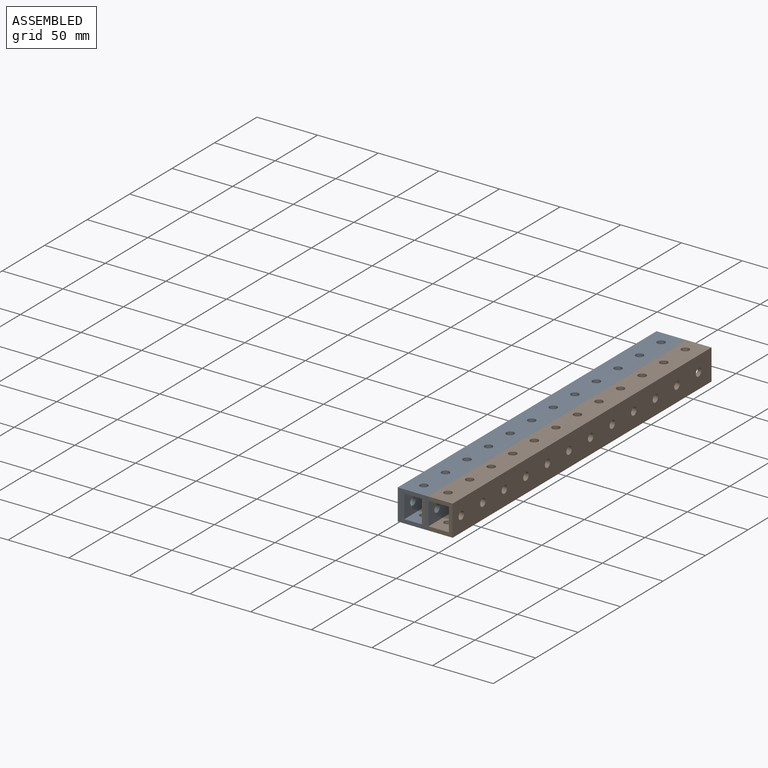
[diagram: assembled view]
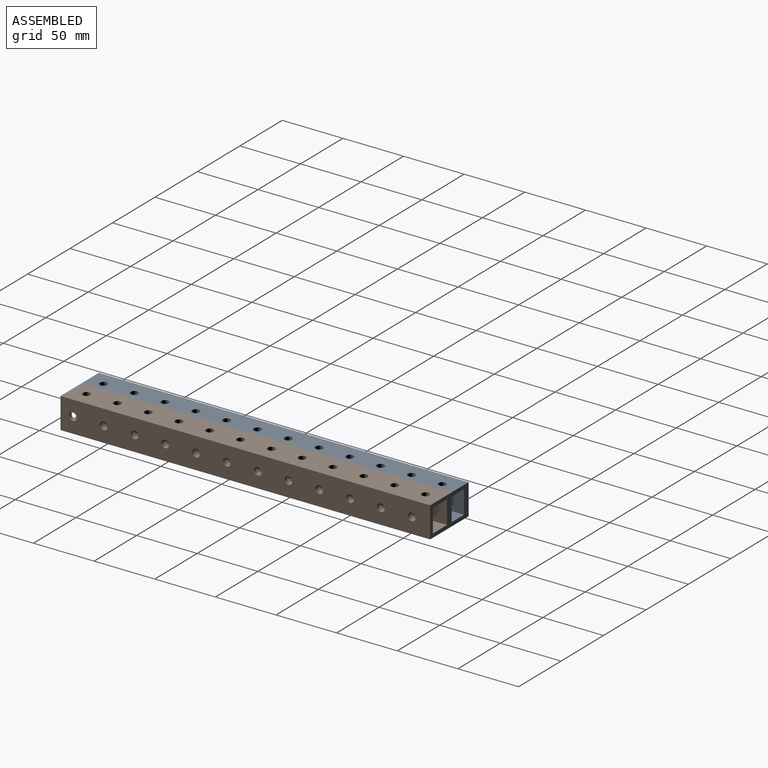
[diagram: assembled view, second angle]
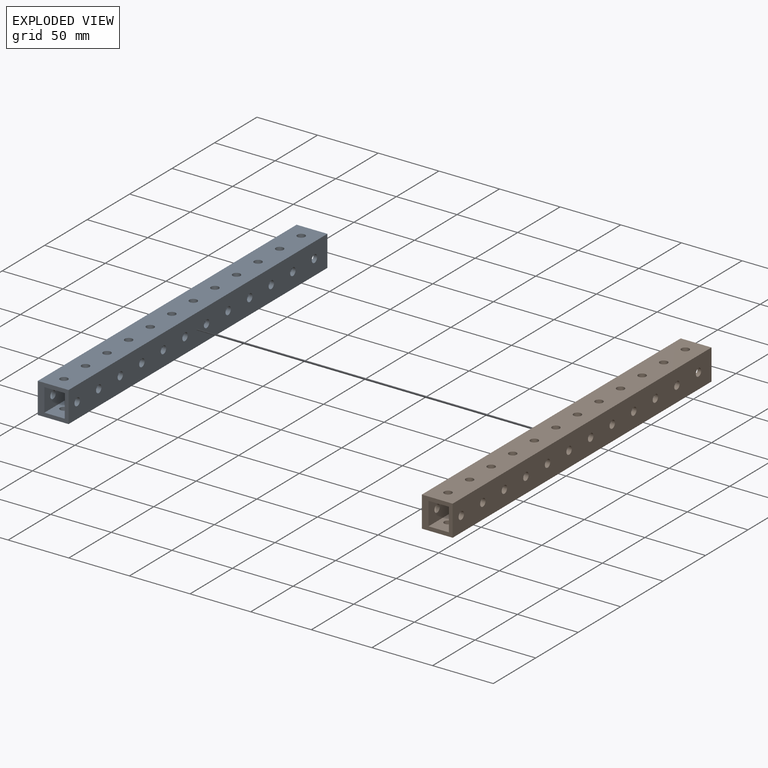
[diagram: exploded view]
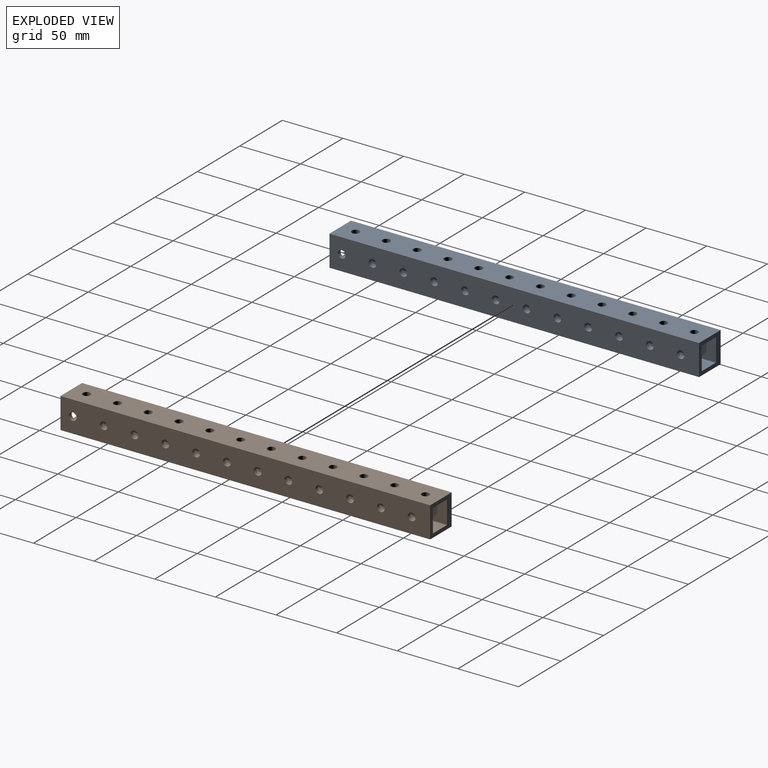
[diagram: exploded view, second angle]
ASSEMBLY  parts=2 mates=4
PART A: 58 faces, bbox 25.4x304.8x25.4 mm
  f0: plane 304.8x25.4mm, normal (-1,0,0), area 7361.9mm2, adj f1,f3,f4,f5,f10,f12,f14,f16
  f1: plane 25.4x25.4mm, normal (0,-1,0), area 326mm2, adj f0,f2,f4,f5,f6,f7,f8,f9
  f2: plane 304.8x25.4mm, normal (1,0,0), area 7361.9mm2, adj f1,f3,f4,f5,f11,f13,f15,f17
  f3: plane 25.4x25.4mm, normal (0,1,0), area 326mm2, adj f0,f2,f4,f5,f6,f7,f8,f9
  f4: plane 304.8x25.4mm, normal (0,0,1), area 7361.9mm2, adj f0,f1,f2,f3,f34,f36,f38,f40
  f5: plane 304.8x25.4mm, normal (0,0,-1), area 7361.9mm2, adj f0,f1,f2,f3,f35,f37,f39,f41
  f6: plane 304.8x19.05mm, normal (-1,0,0), area 5426.4mm2, adj f1,f3,f7,f9,f11,f13,f15,f17
  f7: plane 304.8x16.75mm, normal (0,0,1), area 4726.4mm2, adj f1,f3,f6,f8,f35,f37,f39,f41
  f8: plane 304.8x19.05mm, normal (1,0,0), area 5426.4mm2, adj f1,f3,f7,f9,f10,f12,f14,f16
  f9: plane 304.8x16.75mm, normal (0,0,-1), area 4726.4mm2, adj f1,f3,f6,f8,f34,f36,f38,f40
  f10: cylinder r=3.17mm len=6.35mm, axis (-1,0,0), area 109.2mm2, adj f0,f8
  f11: cylinder r=3.17mm len=6.35mm, axis (-1,0,0), area 63.3mm2, adj f2,f6
  f12: cylinder r=3.17mm len=6.35mm, axis (-1,0,0), area 109.2mm2, adj f0,f8
  f13: cylinder r=3.17mm len=6.35mm, axis (-1,0,0), area 63.3mm2, adj f2,f6
  f14: cylinder r=3.17mm len=6.35mm, axis (-1,0,0), area 109.2mm2, adj f0,f8
  f15: cylinder r=3.17mm len=6.35mm, axis (-1,0,0), area 63.3mm2, adj f2,f6
  f16: cylinder r=3.17mm len=6.35mm, axis (-1,0,0), area 109.2mm2, adj f0,f8
  f17: cylinder r=3.17mm len=6.35mm, axis (-1,0,0), area 63.3mm2, adj f2,f6
  f18: cylinder r=3.17mm len=6.35mm, axis (-1,0,0), area 109.2mm2, adj f0,f8
  f19: cylinder r=3.17mm len=6.35mm, axis (-1,0,0), area 63.3mm2, adj f2,f6
  f20: cylinder r=3.17mm len=6.35mm, axis (-1,0,0), area 109.2mm2, adj f0,f8
  f21: cylinder r=3.17mm len=6.35mm, axis (-1,0,0), area 63.3mm2, adj f2,f6
  f22: cylinder r=3.17mm len=6.35mm, axis (-1,0,0), area 109.2mm2, adj f0,f8
  f23: cylinder r=3.17mm len=6.35mm, axis (-1,0,0), area 63.3mm2, adj f2,f6
  f24: cylinder r=3.17mm len=6.35mm, axis (-1,0,0), area 109.2mm2, adj f0,f8
  f25: cylinder r=3.17mm len=6.35mm, axis (-1,0,0), area 63.3mm2, adj f2,f6
  f26: cylinder r=3.17mm len=6.35mm, axis (-1,0,0), area 109.2mm2, adj f0,f8
  f27: cylinder r=3.17mm len=6.35mm, axis (-1,0,0), area 63.3mm2, adj f2,f6
  f28: cylinder r=3.17mm len=6.35mm, axis (-1,0,0), area 109.2mm2, adj f0,f8
  f29: cylinder r=3.17mm len=6.35mm, axis (-1,0,0), area 63.3mm2, adj f2,f6
  f30: cylinder r=3.17mm len=6.35mm, axis (-1,0,0), area 109.2mm2, adj f0,f8
  f31: cylinder r=3.17mm len=6.35mm, axis (-1,0,0), area 63.3mm2, adj f2,f6
  f32: cylinder r=3.17mm len=6.35mm, axis (-1,0,0), area 109.2mm2, adj f0,f8
  f33: cylinder r=3.17mm len=6.35mm, axis (-1,0,0), area 63.3mm2, adj f2,f6
  f34: cylinder r=3.17mm len=6.35mm, axis (0,0,1), area 63.3mm2, adj f4,f9
  f35: cylinder r=3.17mm len=6.35mm, axis (0,0,1), area 63.3mm2, adj f5,f7
  f36: cylinder r=3.17mm len=6.35mm, axis (0,0,1), area 63.3mm2, adj f4,f9
  f37: cylinder r=3.17mm len=6.35mm, axis (0,0,1), area 63.3mm2, adj f5,f7
  f38: cylinder r=3.17mm len=6.35mm, axis (0,0,1), area 63.3mm2, adj f4,f9
  f39: cylinder r=3.17mm len=6.35mm, axis (0,0,1), area 63.3mm2, adj f5,f7
  f40: cylinder r=3.17mm len=6.35mm, axis (0,0,1), area 63.3mm2, adj f4,f9
  f41: cylinder r=3.17mm len=6.35mm, axis (0,0,1), area 63.3mm2, adj f5,f7
  f42: cylinder r=3.17mm len=6.35mm, axis (0,0,1), area 63.3mm2, adj f4,f9
  f43: cylinder r=3.17mm len=6.35mm, axis (0,0,1), area 63.3mm2, adj f5,f7
  f44: cylinder r=3.17mm len=6.35mm, axis (0,0,1), area 63.3mm2, adj f4,f9
  f45: cylinder r=3.17mm len=6.35mm, axis (0,0,1), area 63.3mm2, adj f5,f7
  f46: cylinder r=3.17mm len=6.35mm, axis (0,0,1), area 63.3mm2, adj f4,f9
  f47: cylinder r=3.17mm len=6.35mm, axis (0,0,1), area 63.3mm2, adj f5,f7
  f48: cylinder r=3.17mm len=6.35mm, axis (0,0,1), area 63.3mm2, adj f4,f9
  f49: cylinder r=3.17mm len=6.35mm, axis (0,0,1), area 63.3mm2, adj f5,f7
  f50: cylinder r=3.17mm len=6.35mm, axis (0,0,1), area 63.3mm2, adj f4,f9
  f51: cylinder r=3.17mm len=6.35mm, axis (0,0,1), area 63.3mm2, adj f5,f7
  f52: cylinder r=3.17mm len=6.35mm, axis (0,0,1), area 63.3mm2, adj f4,f9
  f53: cylinder r=3.17mm len=6.35mm, axis (0,0,1), area 63.3mm2, adj f5,f7
  f54: cylinder r=3.17mm len=6.35mm, axis (0,0,1), area 63.3mm2, adj f4,f9
  f55: cylinder r=3.17mm len=6.35mm, axis (0,0,1), area 63.3mm2, adj f5,f7
  f56: cylinder r=3.17mm len=6.35mm, axis (0,0,1), area 63.3mm2, adj f4,f9
  f57: cylinder r=3.17mm len=6.35mm, axis (0,0,1), area 63.3mm2, adj f5,f7
PART B: same geometry as A
PLACE A t=(-40.23,-15.43,100.98)mm
PLACE B t=(-20.3,-15.43,100.98)mm
MATE cylindrical A.f10 <-> B.f10  axis (-1,0,0) through (-45.7,256.55,113.68)mm
MATE cylindrical B.f32 <-> A.f32  axis (-1,0,0) through (-25.78,-22.85,113.68)mm
MATE planar A.f32 <-> B.f32  axis (1,0,0) through (-20.3,-22.85,113.68)mm
MATE cylindrical B.f32 <-> A.f32  axis (1,0,0) through (-0.38,-22.85,113.68)mm
